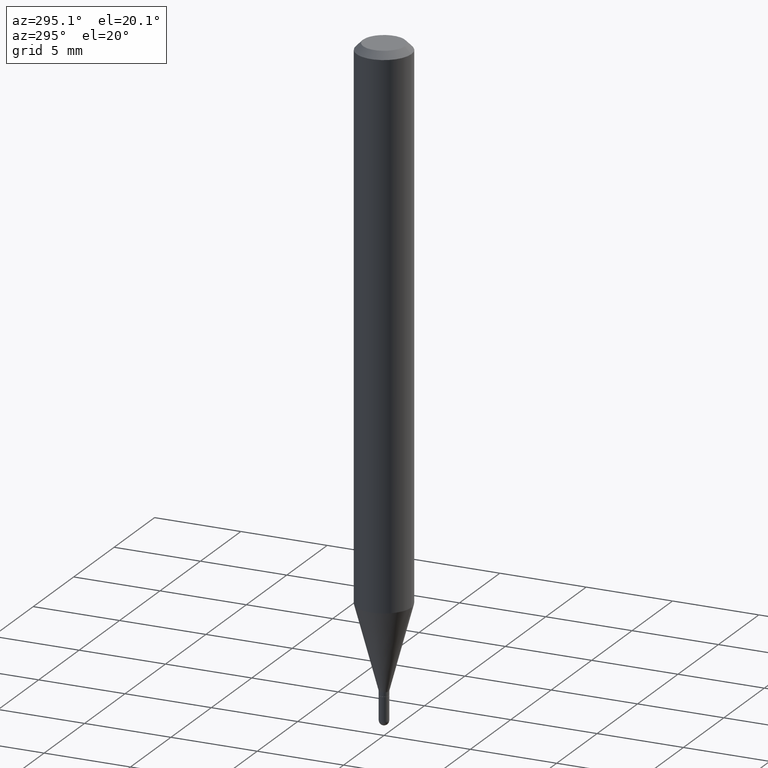
[diagram: clean part render]
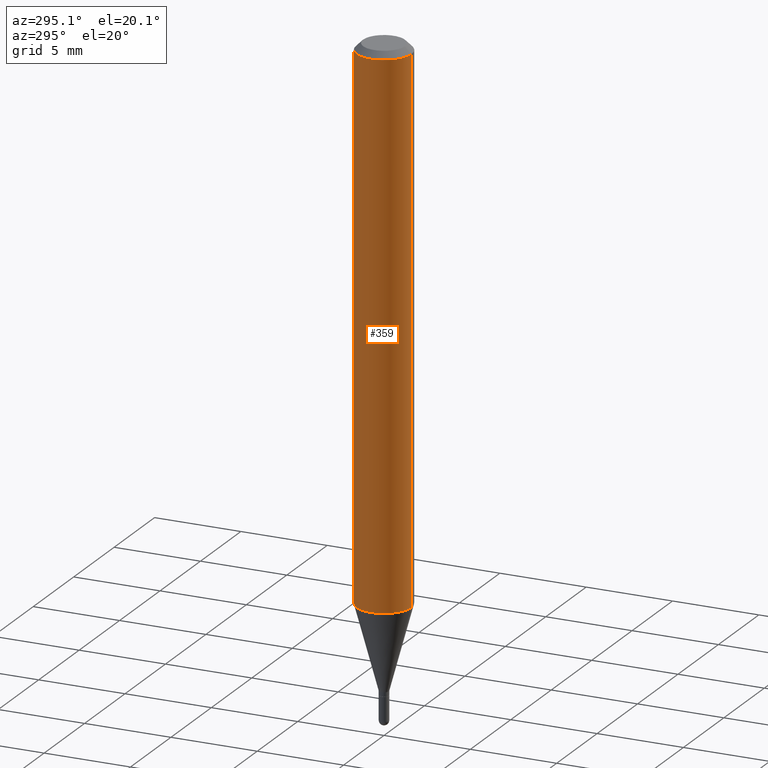
[diagram: same view with one face highlighted and labeled with its STEP entity id]
A machine part, auxiliary view. The second image highlights one B-rep face of the part: STEP entity #359.
In plain terms, the highlighted cylindrical surface (edge-blend (fillet) strip) has radius 1.5875 mm, axis along (-0, 0, 1).
Its self-contained STEP definition (entity closure, byte-faithful):
#18 = CARTESIAN_POINT ( 'NONE',  ( 3.012319032265885643E-29, -4.300815924236401857E-15, -1.231799383410203452 ) ) ;
#48 = EDGE_CURVE ( 'NONE', #80, #240, #123, .T. ) ;
#52 = AXIS2_PLACEMENT_3D ( 'NONE', #282, #440, #165 ) ;
#58 = CARTESIAN_POINT ( 'NONE',  ( 3.668193546167777772E-31, -5.237235846387957191E-17, -0.01499999999999976179 ) ) ;
#66 = EDGE_CURVE ( 'NONE', #240, #512, #217, .T. ) ;
#73 = DIRECTION ( 'NONE',  ( -2.445462364111890454E-29, 3.491490564258693759E-15, 1.000000000000000000 ) ) ;
#76 = VECTOR ( 'NONE', #73, 39.37007874015748143 ) ;
#80 = VERTEX_POINT ( 'NONE', #490 ) ;
#98 = CARTESIAN_POINT ( 'NONE',  ( -4.364351673553916201E-16, -0.06250000000000000000, 2.182181602661683106E-16 ) ) ;
#111 = EDGE_CURVE ( 'NONE', #271, #512, #392, .T. ) ;
#114 = CARTESIAN_POINT ( 'NONE',  ( 4.440892098500928887E-16, 0.06249999999999995143, -0.01499999999999997863 ) ) ;
#123 = CIRCLE ( 'NONE', #190, 0.06250000000000000000 ) ;
#165 = DIRECTION ( 'NONE',  ( -6.982962677686265922E-15, -1.000000000000000000, 3.491490564258692970E-15 ) ) ;
#176 = DIRECTION ( 'NONE',  ( -2.445462364111890454E-29, 3.491490564258693759E-15, 1.000000000000000000 ) ) ;
#190 = AXIS2_PLACEMENT_3D ( 'NONE', #18, #448, #257 ) ;
#199 = ORIENTED_EDGE ( 'NONE', *, *, #230, .F. ) ;
#207 = ORIENTED_EDGE ( 'NONE', *, *, #48, .T. ) ;
#217 = LINE ( 'NONE', #98, #261 ) ;
#230 = EDGE_CURVE ( 'NONE', #80, #271, #507, .T. ) ;
#240 = VERTEX_POINT ( 'NONE', #263 ) ;
#250 = DIRECTION ( 'NONE',  ( -2.445462364111890734E-29, 3.491490564258693364E-15, 1.000000000000000000 ) ) ;
#257 = DIRECTION ( 'NONE',  ( -6.982962677686265922E-15, -1.000000000000000000, 4.370956789862821150E-15 ) ) ;
#261 = VECTOR ( 'NONE', #176, 39.37007874015748143 ) ;
#263 = CARTESIAN_POINT ( 'NONE',  ( -4.364351673553613969E-16, -0.06250000000000428824, -1.231799383410203230 ) ) ;
#264 = ORIENTED_EDGE ( 'NONE', *, *, #66, .T. ) ;
#271 = VERTEX_POINT ( 'NONE', #114 ) ;
#282 = CARTESIAN_POINT ( 'NONE',  ( 0.000000000000000000, 0.000000000000000000, 0.000000000000000000 ) ) ;
#298 = AXIS2_PLACEMENT_3D ( 'NONE', #58, #250, #456 ) ;
#321 = EDGE_LOOP ( 'NONE', ( #199, #207, #264, #355 ) ) ;
#352 = FACE_OUTER_BOUND ( 'NONE', #321, .T. ) ;
#355 = ORIENTED_EDGE ( 'NONE', *, *, #111, .F. ) ;
#359 = ADVANCED_FACE ( 'NONE', ( #352 ), #509, .T. ) ;
#392 = CIRCLE ( 'NONE', #298, 0.06250000000000000000 ) ;
#440 = DIRECTION ( 'NONE',  ( -2.445462364111890734E-29, 3.491490564258693364E-15, 1.000000000000000000 ) ) ;
#448 = DIRECTION ( 'NONE',  ( -2.445462364111890734E-29, 3.491490564258693364E-15, 1.000000000000000000 ) ) ;
#449 = CARTESIAN_POINT ( 'NONE',  ( -4.364351673553912750E-16, -0.06250000000000005551, -0.01499999999999954321 ) ) ;
#456 = DIRECTION ( 'NONE',  ( -6.982962677686265922E-15, -1.000000000000000000, 3.483106191921935554E-15 ) ) ;
#490 = CARTESIAN_POINT ( 'NONE',  ( 4.440892098500924943E-16, 0.06249999999999567013, -1.231799383410203674 ) ) ;
#499 = CARTESIAN_POINT ( 'NONE',  ( 4.440892098500625669E-16, 0.06250000000000000000, -2.182181602661683106E-16 ) ) ;
#507 = LINE ( 'NONE', #499, #76 ) ;
#509 = CYLINDRICAL_SURFACE ( 'NONE', #52, 0.06250000000000000000 ) ;
#512 = VERTEX_POINT ( 'NONE', #449 ) ;